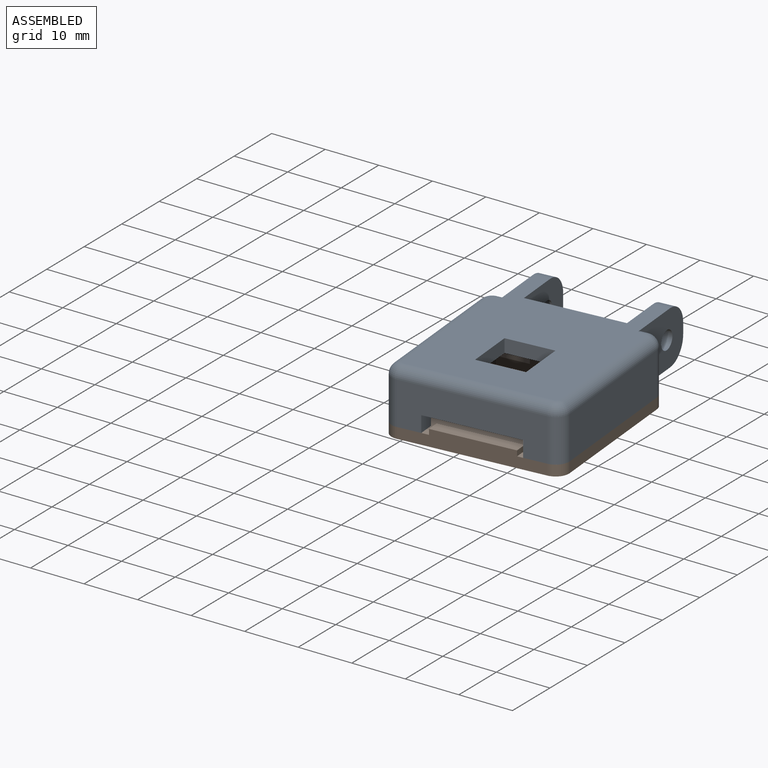
[diagram: assembled view]
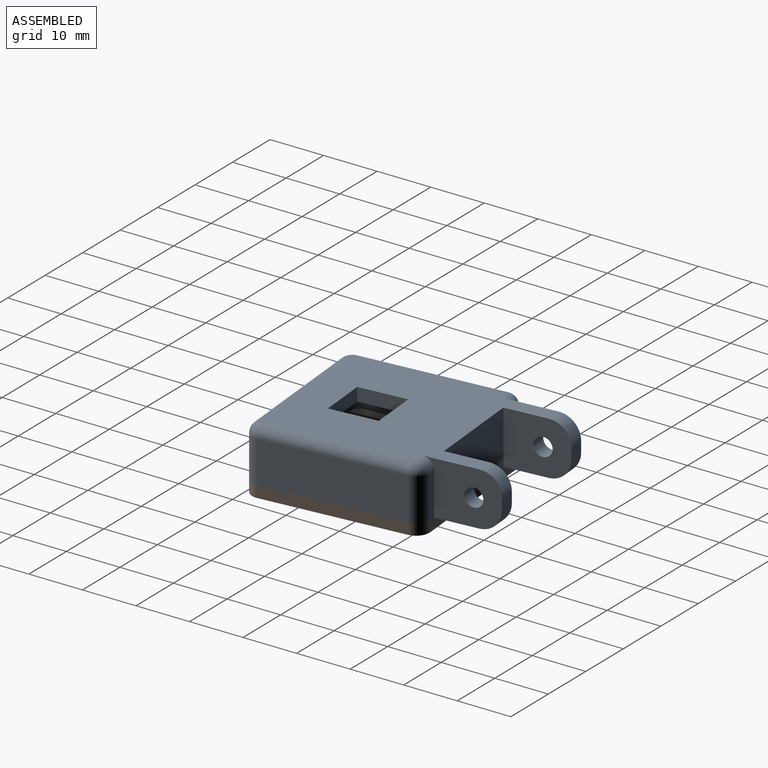
[diagram: assembled view, second angle]
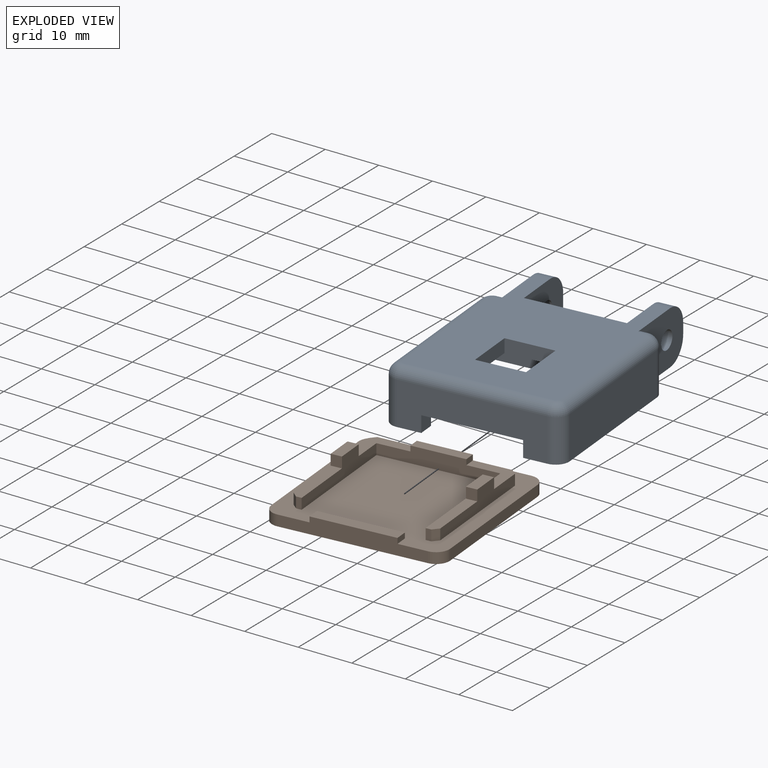
[diagram: exploded view]
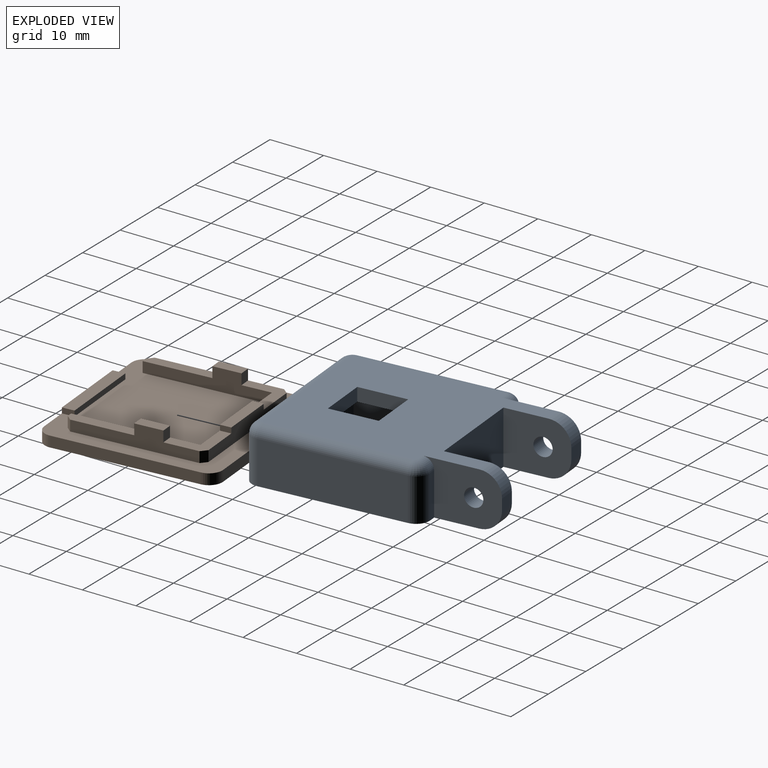
[diagram: exploded view, second angle]
ASSEMBLY  parts=2 mates=3
PART A: 57 faces, bbox 31.6x43.6x10 mm
  f0: plane 3x3mm, normal (1,0,0), area 9mm2, adj f12,f17,f18,f20
  f1: plane 26.6x8mm, normal (-1,0,0), area 212.8mm2, adj f18,f25,f26,f37
  f2: plane 8x1.2mm, normal (0,-1,0), area 9.6mm2, adj f3,f18,f26,f39
  f3: plane 14x10mm, normal (-1,0,0), area 104.9mm2, adj f2,f4,f18,f19,f21,f23,f30,f39
  f4: plane 3x2mm, normal (0,-1,0), area 6mm2, adj f3,f5,f21,f23
  f5: plane 12x10mm, normal (1,0,0), area 104.1mm2, adj f4,f6,f18,f19,f21,f23,f30
  f6: plane 18.2x10mm, normal (0,-1,0), area 182mm2, adj f5,f7,f18,f19
  f7: plane 12x10mm, normal (-1,0,0), area 104.1mm2, adj f6,f8,f18,f19,f22,f24,f29
  f8: plane 3x2mm, normal (0,-1,0), area 6mm2, adj f7,f9,f22,f24
  f9: plane 14x10mm, normal (1,0,0), area 104.9mm2, adj f8,f10,f18,f19,f22,f24,f29,f31
  f10: plane 8x1.2mm, normal (0,-1,0), area 9.6mm2, adj f9,f18,f27,f31
  f11: plane 26.6x8mm, normal (1,0,0), area 212.8mm2, adj f18,f27,f28,f33
  f12: plane 26.6x8mm, normal (0,1,0), area 158.8mm2, adj f0,f13,f18,f20,f25,f28,f35
  f13: plane 3x3mm, normal (-1,0,0), area 9mm2, adj f12,f17,f18,f20
  f14: plane 25.6x5.8mm, normal (-1,0,0), area 148.5mm2, adj f15,f17,f18,f46
  f15: plane 25.6x7.5mm, normal (0,1,0), area 177mm2, adj f14,f16,f18,f44,f45,f46,f47,f48
  f16: plane 25.6x5.8mm, normal (1,0,0), area 148.5mm2, adj f15,f17,f18,f48
  f17: plane 25.6x7.5mm, normal (0,-1,0), area 123mm2, adj f0,f13,f14,f16,f18,f20,f44,f45
  f18: plane 39.6x31.6mm, normal (0,0,1), area 331.8mm2, adj f0,f1,f2,f3,f5,f6,f7,f9
  f19: plane 37.6x27.6mm, normal (0,0,-1), area 776.9mm2, adj f3,f5,f6,f7,f9,f21,f22,f31
  f20: plane 18x3mm, normal (0,0,1), area 54mm2, adj f0,f12,f13,f17
  f21: cylinder r=4mm len=4mm, axis (1,0,0), area 18.8mm2, adj f3,f4,f5,f19
  f22: cylinder r=4mm len=4mm, axis (1,0,0), area 18.8mm2, adj f7,f8,f9,f19
  f23: cylinder r=4mm len=4mm, axis (-1,0,0), area 18.8mm2, adj f3,f4,f5,f18
  f24: cylinder r=4mm len=4mm, axis (-1,0,0), area 18.8mm2, adj f7,f8,f9,f18
  f25: cylinder r=2.5mm len=8mm, axis (0,0,-1), area 31.4mm2, adj f1,f12,f18,f36
  f26: cylinder r=2.5mm len=8mm, axis (0,0,1), area 31.4mm2, adj f1,f2,f18,f38
  f27: cylinder r=2.5mm len=8mm, axis (0,0,-1), area 31.4mm2, adj f10,f11,f18,f32
  f28: cylinder r=2.5mm len=8mm, axis (0,0,1), area 31.4mm2, adj f11,f12,f18,f34
  f29: cylinder r=1.7mm len=3.4mm, axis (-1,0,0), area 32mm2, adj f7,f9
  f30: cylinder r=1.7mm len=3.4mm, axis (-1,0,0), area 32mm2, adj f3,f5
  f31: cylinder r=2mm len=2mm, axis (1,0,0), area 3.8mm2, adj f9,f10,f19,f32
  f32: torus R=0.5mm, axis (0,0,1), area 8.8mm2, adj f19,f27,f31,f33
  f33: cylinder r=2mm len=26.6mm, axis (0,1,0), area 83.6mm2, adj f11,f19,f32,f34
  f34: torus R=0.5mm, axis (0,0,1), area 8.8mm2, adj f19,f28,f33,f35
  f35: cylinder r=2mm len=26.6mm, axis (-1,0,0), area 83.6mm2, adj f12,f19,f34,f36
  f36: torus R=0.5mm, axis (0,0,1), area 8.8mm2, adj f19,f25,f35,f37
  f37: cylinder r=2mm len=26.6mm, axis (0,-1,0), area 83.6mm2, adj f1,f19,f36,f38
  f38: torus R=0.5mm, axis (0,0,1), area 8.8mm2, adj f19,f26,f37,f39
  f39: cylinder r=2mm len=2mm, axis (1,0,0), area 3.8mm2, adj f2,f3,f19,f38
  f40: plane 9x2.5mm, normal (-1,0,0), area 22.5mm2, adj f19,f41,f43,f44
  f41: plane 9x2.5mm, normal (0,1,0), area 22.5mm2, adj f19,f40,f42,f44
  f42: plane 9x2.5mm, normal (1,0,0), area 22.5mm2, adj f19,f41,f43,f44
  f43: plane 9x2.5mm, normal (0,-1,0), area 22.5mm2, adj f19,f40,f42,f44
  f44: plane 25.6x16.8mm, normal (0,0,1), area 349.1mm2, adj f15,f17,f40,f41,f42,f43,f45,f47
  f45: plane 25.6x1.7mm, normal (-1,0,0), area 43.5mm2, adj f15,f17,f44,f46
  f46: plane 25.6x4.4mm, normal (0,0,1), area 107.6mm2, adj f14,f15,f17,f45,f54,f56
  f47: plane 25.6x1.7mm, normal (1,0,0), area 43.5mm2, adj f15,f17,f44,f48
  f48: plane 25.6x4.4mm, normal (0,0,1), area 107.6mm2, adj f15,f16,f17,f47,f50,f52
  f49: cone r=0mm half-angle=59deg, axis (0,0,1), area 3mm2, adj f50
  f50: cylinder r=0.9mm len=2mm, axis (0,0,1), area 11.3mm2, adj f48,f49
  f51: cone r=0mm half-angle=59deg, axis (0,0,1), area 3mm2, adj f52
  f52: cylinder r=0.9mm len=2mm, axis (0,0,1), area 11.3mm2, adj f48,f51
  f53: cone r=0mm half-angle=59deg, axis (0,0,1), area 3mm2, adj f54
  f54: cylinder r=0.9mm len=2mm, axis (0,0,1), area 11.3mm2, adj f46,f53
  f55: cone r=0mm half-angle=59deg, axis (0,0,1), area 3mm2, adj f56
  f56: cylinder r=0.9mm len=2mm, axis (0,0,1), area 11.3mm2, adj f46,f55
PART B: 39 faces, bbox 31.6x31.6x6 mm
  f0: plane 31.6x31.6mm, normal (0,0,1), area 817mm2, adj f2,f3,f4,f5,f6,f7,f8,f9
  f1: plane 31.6x31.6mm, normal (0,0,-1), area 993.2mm2, adj f5,f6,f7,f8,f31,f32,f33,f34
  f2: plane 22.86x4mm, normal (1,0,0), area 56mm2, adj f0,f4,f15,f18,f19,f25,f26,f27
  f3: plane 22.86x4mm, normal (-1,0,0), area 56mm2, adj f0,f4,f17,f20,f21,f28,f29,f30
  f4: plane 21.9x3mm, normal (0,-1,0), area 53.7mm2, adj f0,f2,f3,f15,f17,f22,f23,f24
  f5: plane 26.6x3mm, normal (0,-1,0), area 68.7mm2, adj f0,f1,f9,f11,f12,f31,f34
  f6: plane 26.6x2mm, normal (1,0,0), area 53.2mm2, adj f0,f1,f33,f34
  f7: plane 26.6x2mm, normal (0,1,0), area 53.2mm2, adj f0,f1,f32,f33
  f8: plane 26.6x2mm, normal (-1,0,0), area 53.2mm2, adj f0,f1,f31,f32
  f9: plane 2.25x1mm, normal (1,0,0), area 2.3mm2, adj f0,f5,f10,f12
  f10: plane 15.55x1mm, normal (0,1,0), area 15.5mm2, adj f0,f9,f11,f12
  f11: plane 2.25x1mm, normal (-1,0,0), area 2.3mm2, adj f0,f5,f10,f12
  f12: plane 15.55x2.25mm, normal (0,0,1), area 35mm2, adj f5,f9,f10,f11
  f13: plane 23.9x3mm, normal (0,1,0), area 57.7mm2, adj f0,f15,f17,f22,f23,f24,f35,f36
  f14: plane 22.86x4mm, normal (-1,0,0), area 56mm2, adj f0,f15,f19,f25,f26,f27,f35,f37
  f15: plane 8x7.38mm, normal (0,0,1), area 26.3mm2, adj f2,f4,f13,f14,f24,f27,f35
  f16: plane 22.86x4mm, normal (1,0,0), area 56mm2, adj f0,f17,f21,f28,f29,f30,f36,f38
  f17: plane 8x7.38mm, normal (0,0,1), area 26.3mm2, adj f3,f4,f13,f16,f23,f30,f36
  f18: plane 2x1mm, normal (0,-1,0), area 2mm2, adj f0,f2,f19,f37
  f19: plane 12.33x2mm, normal (0,0,1), area 24.2mm2, adj f2,f14,f18,f26,f37
  f20: plane 2x1mm, normal (0,-1,0), area 2mm2, adj f0,f3,f21,f38
  f21: plane 12.33x2mm, normal (0,0,1), area 24.2mm2, adj f3,f16,f20,f29,f38
  f22: plane 9.9x2mm, normal (0,0,1), area 19.8mm2, adj f4,f13,f23,f24
  f23: plane 2x1mm, normal (1,0,0), area 2mm2, adj f4,f13,f17,f22
  f24: plane 2x1mm, normal (-1,0,0), area 2mm2, adj f4,f13,f15,f22
  f25: plane 5.15x2mm, normal (0,0,1), area 10.3mm2, adj f2,f14,f26,f27
  f26: plane 2x2mm, normal (0,-1,0), area 4mm2, adj f2,f14,f19,f25
  f27: plane 2x2mm, normal (0,1,0), area 4mm2, adj f2,f14,f15,f25
  f28: plane 5.15x2mm, normal (0,0,1), area 10.3mm2, adj f3,f16,f29,f30
  f29: plane 2x2mm, normal (0,-1,0), area 4mm2, adj f3,f16,f21,f28
  f30: plane 2x2mm, normal (0,1,0), area 4mm2, adj f3,f16,f17,f28
  f31: cylinder r=2.5mm len=2.5mm, axis (0,0,-1), area 7.9mm2, adj f0,f1,f5,f8
  f32: cylinder r=2.5mm len=2.5mm, axis (0,0,1), area 7.9mm2, adj f0,f1,f7,f8
  f33: cylinder r=2.5mm len=2.5mm, axis (0,0,-1), area 7.9mm2, adj f0,f1,f6,f7
  f34: cylinder r=2.5mm len=2.5mm, axis (0,0,1), area 7.9mm2, adj f0,f1,f5,f6
  f35: plane 2x1mm, normal (-0.71,0.71,0), area 2.8mm2, adj f0,f13,f14,f15
  f36: plane 2x1mm, normal (0.71,0.71,0), area 2.8mm2, adj f0,f13,f16,f17
  f37: plane 2x1mm, normal (-0.71,-0.71,0), area 2.8mm2, adj f0,f14,f18,f19
  f38: plane 2x1mm, normal (0.71,-0.71,0), area 2.8mm2, adj f0,f16,f20,f21
PLACE A rot(axis=(1,0.04,0),180deg) t=(2.06,5.8,26.12)mm
PLACE B rot(axis=(0,0,1),5deg) t=(2.06,5.8,14.12)mm
MATE planar B.f5 <-> A.f12  axis (0.09,-1,0) through (3.47,-9.94,15.46)mm
MATE planar A.f11 <-> B.f6  axis (1,0.09,0) through (17.8,7.18,20.12)mm
MATE planar B.f0 <-> A.f18  axis (0,0,1) through (2.05,5.81,16.12)mm
